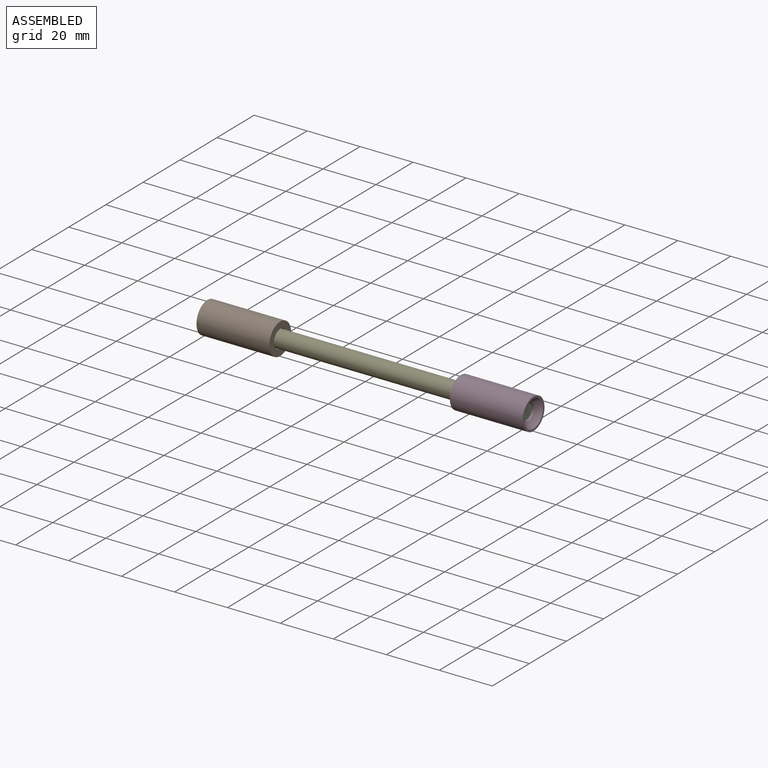
[diagram: assembled view]
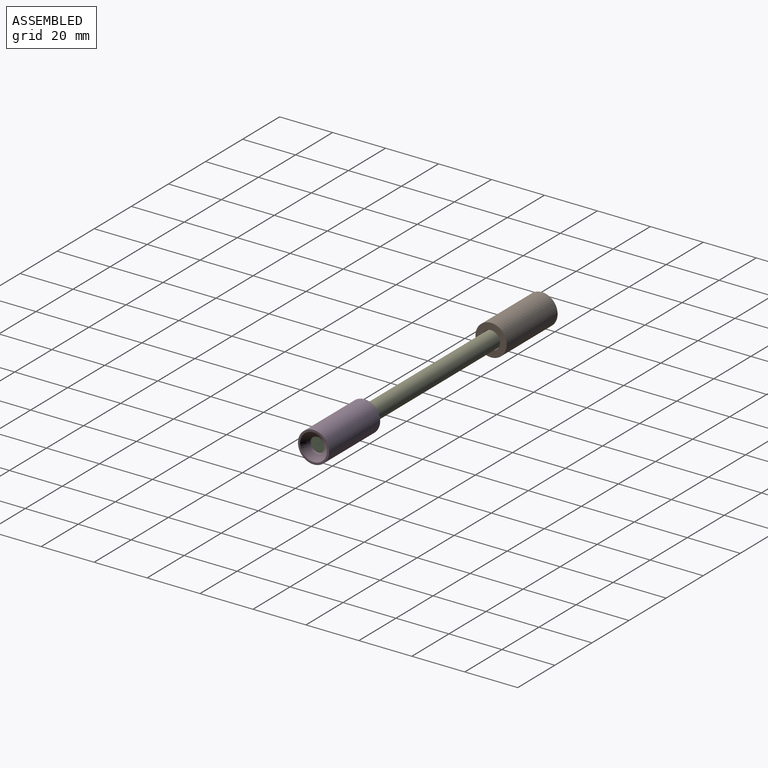
[diagram: assembled view, second angle]
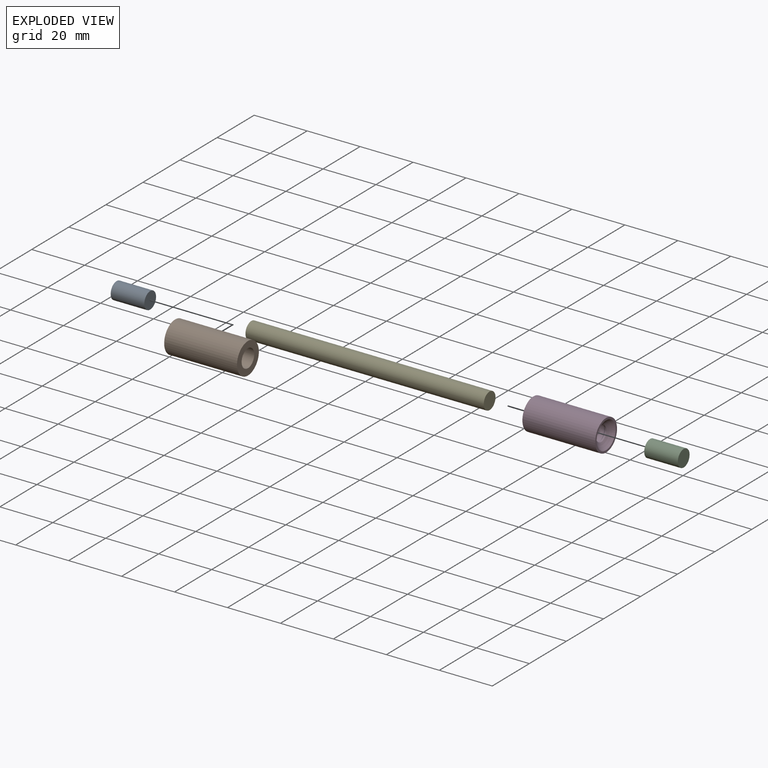
[diagram: exploded view]
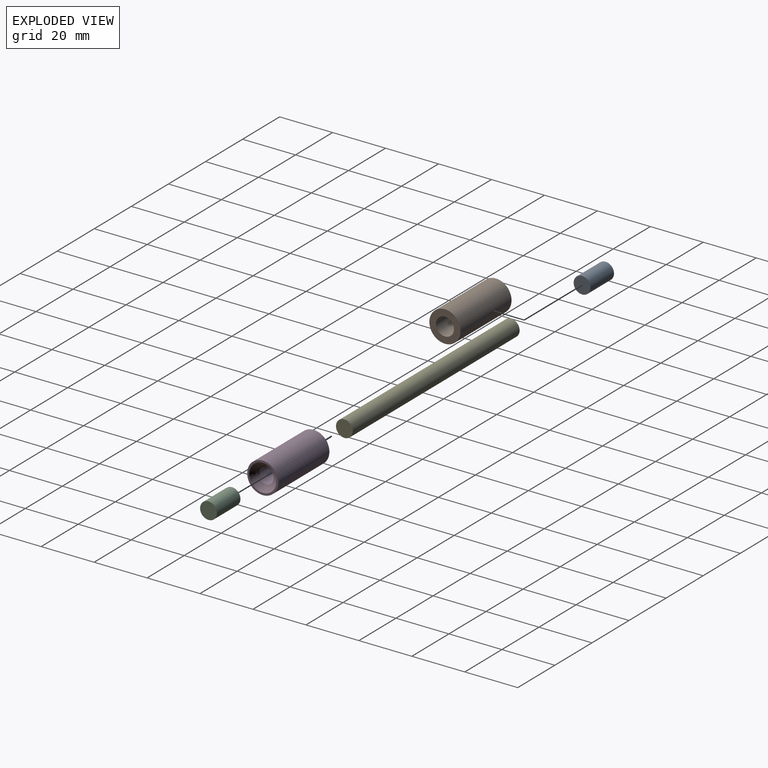
[diagram: exploded view, second angle]
ASSEMBLY  parts=5 mates=4
PART A: 3 faces, bbox 6.4x6.4x12.7 mm
  f0: cylinder r=3.17mm len=12.7mm, axis (0,0,-1), area 253.4mm2, adj f1,f2
  f1: plane 6.35x6.35mm, normal (0,0,1), area 31.7mm2, adj f0
  f2: plane 6.35x6.35mm, normal (0,0,-1), area 31.7mm2, adj f0
PART B: 9 faces, bbox 27.5x11.8x11.8 mm
  f0: cylinder r=3.3mm len=13.5mm, axis (-1,0,0), area 279.9mm2, adj f1,f8
  f1: cone r=3.3mm half-angle=45deg, axis (-1,0,0), area 13.6mm2, adj f0,f2
  f2: cylinder r=2.8mm len=5.6mm, axis (-1,0,0), area 11.2mm2, adj f1,f3
  f3: sphere r=6.47mm, area 75.8mm2, adj f2,f4
  f4: plane 11.8x11.8mm, normal (1,0,0), area 27.3mm2, adj f3,f5
  f5: cylinder r=5.9mm len=27.5mm, axis (-1,0,0), area 1019.4mm2, adj f4,f6
  f6: plane 11.8x11.8mm, normal (-1,0,0), area 73mm2, adj f5,f7
  f7: cylinder r=3.4mm len=10.9mm, axis (-1,0,0), area 232.9mm2, adj f6,f8
  f8: cone r=3.3mm half-angle=45deg, axis (-1,0,0), area 3mm2, adj f0,f7
PART C: same geometry as A
PART D: same geometry as B
PART E: 3 faces, bbox 6.4x6.4x90 mm
  f0: cylinder r=3.17mm len=90mm, axis (0,0,-1), area 1795.4mm2, adj f1,f2
  f1: plane 6.35x6.35mm, normal (0,0,1), area 31.7mm2, adj f0
  f2: plane 6.35x6.35mm, normal (0,0,-1), area 31.7mm2, adj f0
PLACE A rot(axis=(0,-1,0),90deg) t=(-108.11,-3.1,2.29)mm
PLACE B rot(axis=(0,0,1),180deg) t=(-108.04,-3.1,2.29)mm
PLACE C rot(axis=(0.71,0,-0.71),180deg) t=(-3.61,-3.1,2.29)mm
PLACE D t=(-3.69,-3.1,2.29)mm fixed
PLACE E rot(axis=(0,1,0),90deg) t=(-100.86,-3.1,2.29)mm
MATE fastened C.f0 <-> D.f0  axis (1,0,0) through (2.74,-3.1,2.29)mm
MATE fastened A.f0 <-> B.f0  axis (-1,0,0) through (-114.46,-3.1,2.29)mm
MATE fastened E.f0 <-> D.f0  axis (1,0,0) through (-10.86,-3.1,2.29)mm
MATE fastened E.f0 <-> B.f0  axis (-1,0,0) through (-100.86,-3.1,2.29)mm
